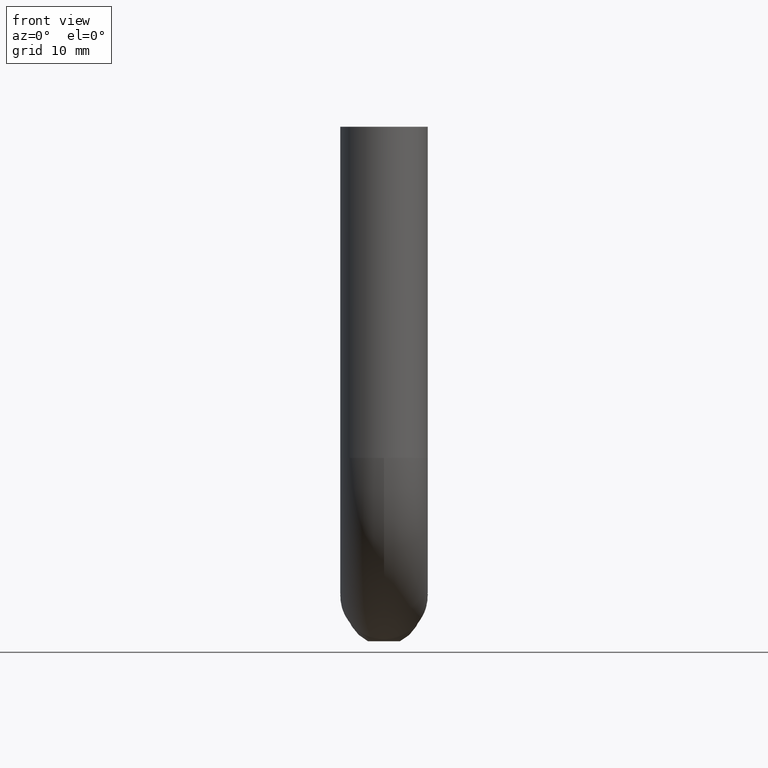
[diagram: clean part render]
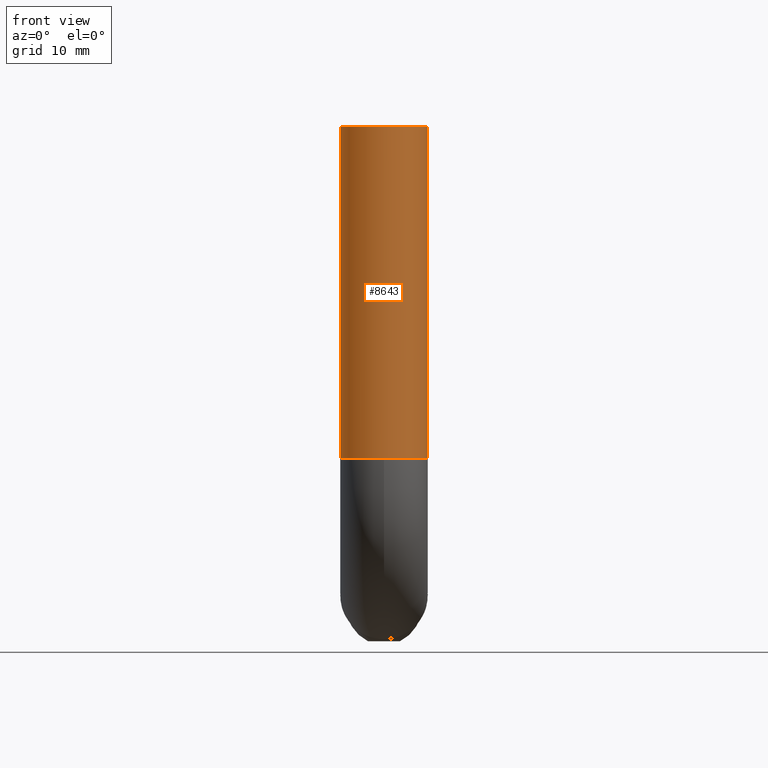
[diagram: same view with one face highlighted and labeled with its STEP entity id]
A machine part, front view. The second image highlights one B-rep face of the part: STEP entity #8643.
In plain terms, the highlighted cylindrical surface (partial cylindrical patch) has radius 7 mm, axis along (0, 0, 1).
Its self-contained STEP definition (entity closure, byte-faithful):
#135 = CARTESIAN_POINT ( 'NONE',  ( 0.000000000000000000, 0.000000000000000000, -53.00000000000000000 ) ) ;
#273 = DIRECTION ( 'NONE',  ( -0.000000000000000000, -0.000000000000000000, 1.000000000000000000 ) ) ;
#481 = EDGE_CURVE ( 'NONE', #8383, #12124, #13136, .T. ) ;
#553 = CYLINDRICAL_SURFACE ( 'NONE', #1890, 7.000000000000000000 ) ;
#757 = CARTESIAN_POINT ( 'NONE',  ( 7.000000000000000000, 0.000000000000000000, 0.000000000000000000 ) ) ;
#909 = AXIS2_PLACEMENT_3D ( 'NONE', #6194, #14344, #10975 ) ;
#1349 = VERTEX_POINT ( 'NONE', #757 ) ;
#1490 = ORIENTED_EDGE ( 'NONE', *, *, #12051, .T. ) ;
#1524 = VERTEX_POINT ( 'NONE', #1954 ) ;
#1563 = CARTESIAN_POINT ( 'NONE',  ( 7.000000000000000000, 0.000000000000000000, -53.00000000000000000 ) ) ;
#1890 = AXIS2_PLACEMENT_3D ( 'NONE', #135, #10623, #11854 ) ;
#1954 = CARTESIAN_POINT ( 'NONE',  ( -7.000000000000000000, 8.572527594031473190E-16, 0.000000000000000000 ) ) ;
#2523 = LINE ( 'NONE', #4002, #4725 ) ;
#2570 = ORIENTED_EDGE ( 'NONE', *, *, #4123, .T. ) ;
#4002 = CARTESIAN_POINT ( 'NONE',  ( 7.000000000000000000, 0.000000000000000000, -53.00000000000000000 ) ) ;
#4123 = EDGE_CURVE ( 'NONE', #12789, #8383, #13800, .T. ) ;
#4658 = AXIS2_PLACEMENT_3D ( 'NONE', #13834, #10353, #9081 ) ;
#4725 = VECTOR ( 'NONE', #6352, 1000.000000000000000 ) ;
#4926 = LINE ( 'NONE', #4943, #6749 ) ;
#4943 = CARTESIAN_POINT ( 'NONE',  ( -7.000000000000000000, 8.572527594031473190E-16, -53.00000000000000000 ) ) ;
#6194 = CARTESIAN_POINT ( 'NONE',  ( 0.000000000000000000, 0.000000000000000000, -53.00000000000000000 ) ) ;
#6210 = ORIENTED_EDGE ( 'NONE', *, *, #10964, .F. ) ;
#6352 = DIRECTION ( 'NONE',  ( -0.000000000000000000, -0.000000000000000000, 1.000000000000000000 ) ) ;
#6401 = DIRECTION ( 'NONE',  ( 0.000000000000000000, 0.000000000000000000, 1.000000000000000000 ) ) ;
#6749 = VECTOR ( 'NONE', #273, 1000.000000000000000 ) ;
#7019 = EDGE_LOOP ( 'NONE', ( #13490, #2570, #7297, #1490, #6210 ) ) ;
#7297 = ORIENTED_EDGE ( 'NONE', *, *, #481, .T. ) ;
#8045 = FACE_OUTER_BOUND ( 'NONE', #7019, .T. ) ;
#8383 = VERTEX_POINT ( 'NONE', #11780 ) ;
#8643 = ADVANCED_FACE ( 'NONE', ( #8045 ), #553, .T. ) ;
#8727 = CIRCLE ( 'NONE', #12764, 7.000000000000000000 ) ;
#9081 = DIRECTION ( 'NONE',  ( 1.000000000000000000, 0.000000000000000000, 0.000000000000000000 ) ) ;
#9917 = CARTESIAN_POINT ( 'NONE',  ( -0.000000000000000000, 0.000000000000000000, 0.000000000000000000 ) ) ;
#10267 = EDGE_CURVE ( 'NONE', #12789, #1524, #4926, .T. ) ;
#10353 = DIRECTION ( 'NONE',  ( 0.000000000000000000, 0.000000000000000000, 1.000000000000000000 ) ) ;
#10623 = DIRECTION ( 'NONE',  ( -0.000000000000000000, -0.000000000000000000, 1.000000000000000000 ) ) ;
#10651 = CARTESIAN_POINT ( 'NONE',  ( -7.000000000000000000, 8.572527594031473190E-16, -53.00000000000000000 ) ) ;
#10941 = DIRECTION ( 'NONE',  ( 1.000000000000000000, 0.000000000000000000, 0.000000000000000000 ) ) ;
#10964 = EDGE_CURVE ( 'NONE', #1524, #1349, #8727, .T. ) ;
#10975 = DIRECTION ( 'NONE',  ( 1.000000000000000000, 0.000000000000000000, 0.000000000000000000 ) ) ;
#11780 = CARTESIAN_POINT ( 'NONE',  ( 0.000000000000000000, -6.999999999999999112, -53.00000000000000000 ) ) ;
#11854 = DIRECTION ( 'NONE',  ( 1.000000000000000000, 0.000000000000000000, 0.000000000000000000 ) ) ;
#12051 = EDGE_CURVE ( 'NONE', #12124, #1349, #2523, .T. ) ;
#12124 = VERTEX_POINT ( 'NONE', #1563 ) ;
#12764 = AXIS2_PLACEMENT_3D ( 'NONE', #9917, #6401, #10941 ) ;
#12789 = VERTEX_POINT ( 'NONE', #10651 ) ;
#13136 = CIRCLE ( 'NONE', #4658, 7.000000000000000000 ) ;
#13490 = ORIENTED_EDGE ( 'NONE', *, *, #10267, .F. ) ;
#13800 = CIRCLE ( 'NONE', #909, 7.000000000000000000 ) ;
#13834 = CARTESIAN_POINT ( 'NONE',  ( 0.000000000000000000, 0.000000000000000000, -53.00000000000000000 ) ) ;
#14344 = DIRECTION ( 'NONE',  ( 0.000000000000000000, 0.000000000000000000, 1.000000000000000000 ) ) ;